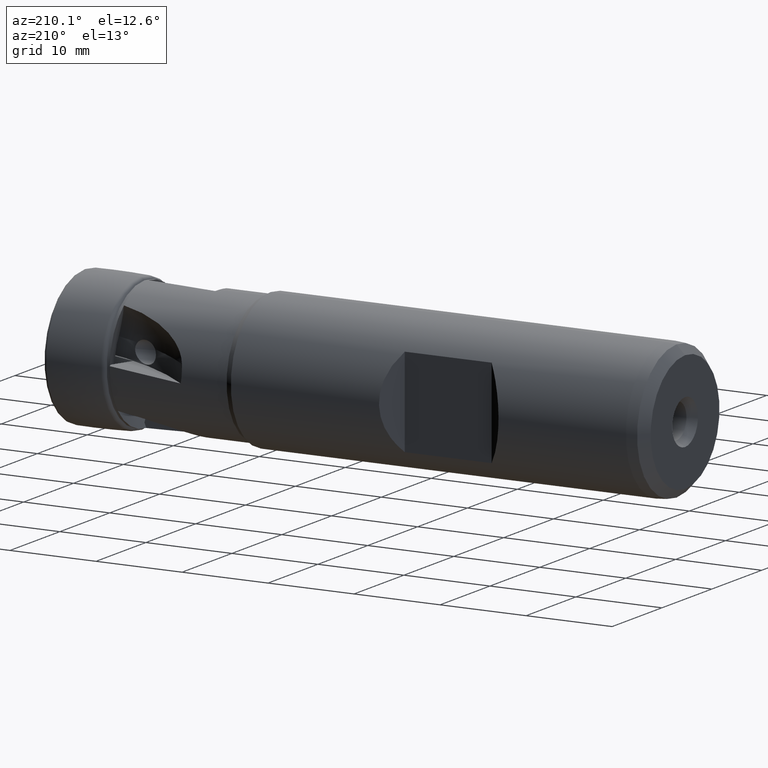
[diagram: clean part render]
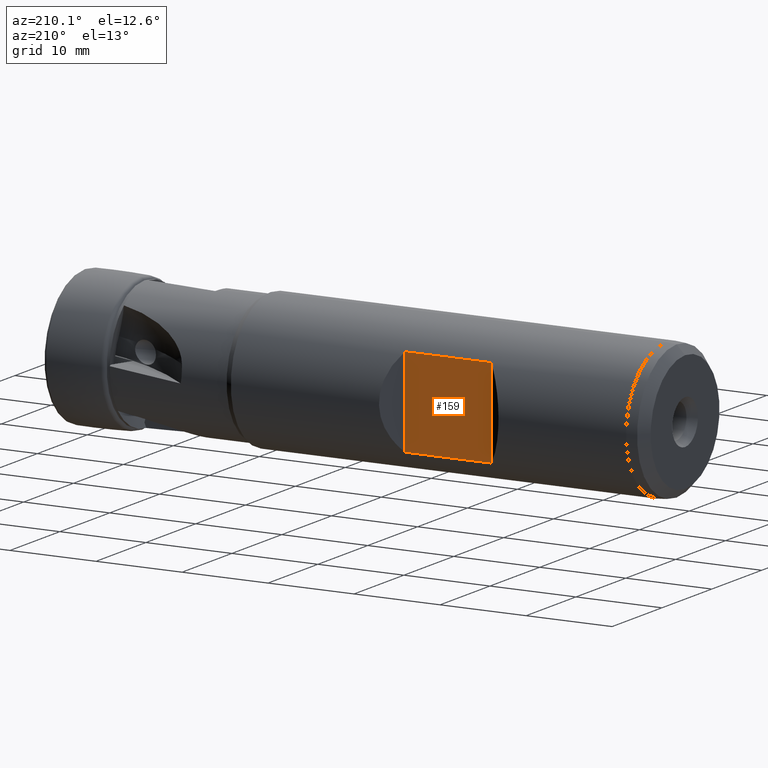
[diagram: same view with one face highlighted and labeled with its STEP entity id]
A machine part, auxiliary view. The second image highlights one B-rep face of the part: STEP entity #159.
In plain terms, the highlighted planar face has unit normal (0, -1, 0).
Its self-contained STEP definition (entity closure, byte-faithful):
#159 = ADVANCED_FACE ( 'NONE', ( #3842 ), #3837, .F. ) ;
#190 = EDGE_CURVE ( 'NONE', #3311, #3310, #3459, .T. ) ;
#191 = EDGE_CURVE ( 'NONE', #3318, #3322, #3458, .T. ) ;
#704 = AXIS2_PLACEMENT_3D ( 'NONE', #3839, #3844, #3845 ) ;
#720 = VECTOR ( 'NONE', #3466, 1000.000000000000000 ) ;
#721 = VECTOR ( 'NONE', #3463, 1000.000000000000000 ) ;
#1025 = LINE ( 'NONE', #1026, #3103 ) ;
#1026 = CARTESIAN_POINT ( 'NONE',  ( -5.238521387850759400E-016, 6.100000000000005900, -5.175905717842996800 ) ) ;
#1027 = DIRECTION ( 'NONE',  ( -1.000000000000000000, 0.0000000000000000000, 0.0000000000000000000 ) ) ;
#1124 = LINE ( 'NONE', #1129, #1868 ) ;
#1129 = CARTESIAN_POINT ( 'NONE',  ( -5.238521387850759400E-016, 6.100000000000005900, 5.175905717842996800 ) ) ;
#1130 = DIRECTION ( 'NONE',  ( 1.000000000000000000, -0.0000000000000000000, -0.0000000000000000000 ) ) ;
#1292 = ORIENTED_EDGE ( 'NONE', *, *, #190, .F. ) ;
#1294 = ORIENTED_EDGE ( 'NONE', *, *, #2806, .T. ) ;
#1295 = ORIENTED_EDGE ( 'NONE', *, *, #191, .T. ) ;
#1533 = ORIENTED_EDGE ( 'NONE', *, *, #2630, .T. ) ;
#1868 = VECTOR ( 'NONE', #1130, 1000.000000000000000 ) ;
#2119 = CARTESIAN_POINT ( 'NONE',  ( -50.54999999999999700, 6.100000000000001400, -5.175905717842998600 ) ) ;
#2120 = CARTESIAN_POINT ( 'NONE',  ( -50.54999999999999700, 6.100000000000001400, 5.175905717843005700 ) ) ;
#2125 = CARTESIAN_POINT ( 'NONE',  ( -40.45000000000000300, 6.100000000000005900, 5.175905717842996800 ) ) ;
#2129 = CARTESIAN_POINT ( 'NONE',  ( -40.45000000000000300, 6.100000000000005900, -5.175905717842996800 ) ) ;
#2630 = EDGE_CURVE ( 'NONE', #3311, #3318, #1124, .T. ) ;
#2806 = EDGE_CURVE ( 'NONE', #3322, #3310, #1025, .T. ) ;
#2873 = EDGE_LOOP ( 'NONE', ( #1295, #1294, #1292, #1533 ) ) ;
#3103 = VECTOR ( 'NONE', #1027, 1000.000000000000000 ) ;
#3310 = VERTEX_POINT ( 'NONE', #2119 ) ;
#3311 = VERTEX_POINT ( 'NONE', #2120 ) ;
#3318 = VERTEX_POINT ( 'NONE', #2125 ) ;
#3322 = VERTEX_POINT ( 'NONE', #2129 ) ;
#3442 = CARTESIAN_POINT ( 'NONE',  ( -50.54999999999999700, 6.100000000000001400, 23.14999999999999900 ) ) ;
#3458 = LINE ( 'NONE', #3464, #720 ) ;
#3459 = LINE ( 'NONE', #3442, #721 ) ;
#3463 = DIRECTION ( 'NONE',  ( -0.0000000000000000000, -0.0000000000000000000, -1.000000000000000000 ) ) ;
#3464 = CARTESIAN_POINT ( 'NONE',  ( -40.45000000000000300, 6.100000000000002300, 23.14999999999999900 ) ) ;
#3466 = DIRECTION ( 'NONE',  ( -0.0000000000000000000, -0.0000000000000000000, -1.000000000000000000 ) ) ;
#3837 = PLANE ( 'NONE',  #704 ) ;
#3839 = CARTESIAN_POINT ( 'NONE',  ( -40.45000000000000300, 6.100000000000002300, 23.14999999999999900 ) ) ;
#3842 = FACE_OUTER_BOUND ( 'NONE', #2873, .T. ) ;
#3844 = DIRECTION ( 'NONE',  ( 8.587739980083204900E-017, -1.000000000000000000, 0.0000000000000000000 ) ) ;
#3845 = DIRECTION ( 'NONE',  ( 1.000000000000000000, 8.587739980083204900E-017, 0.0000000000000000000 ) ) ;